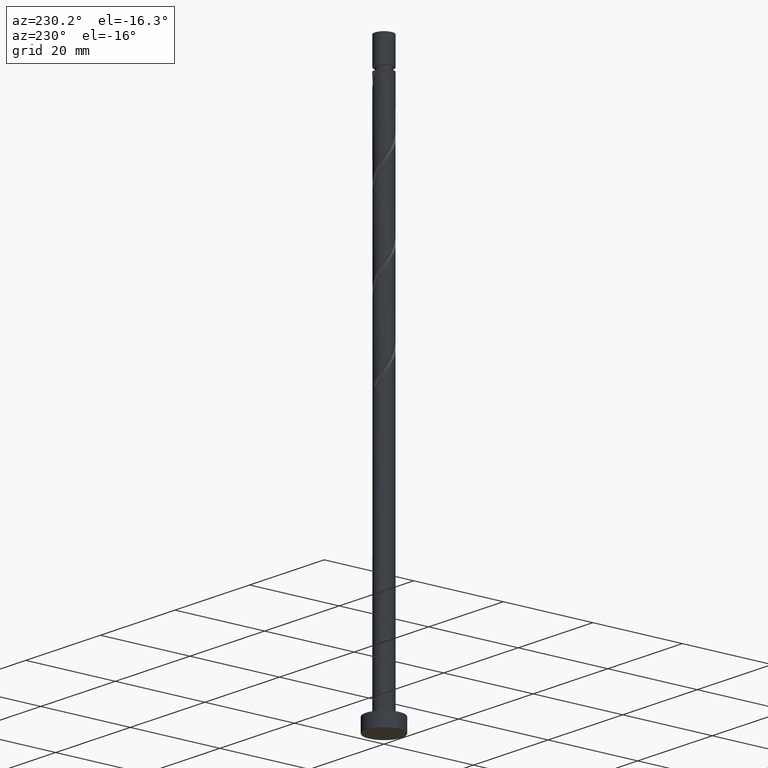
[diagram: clean part render]
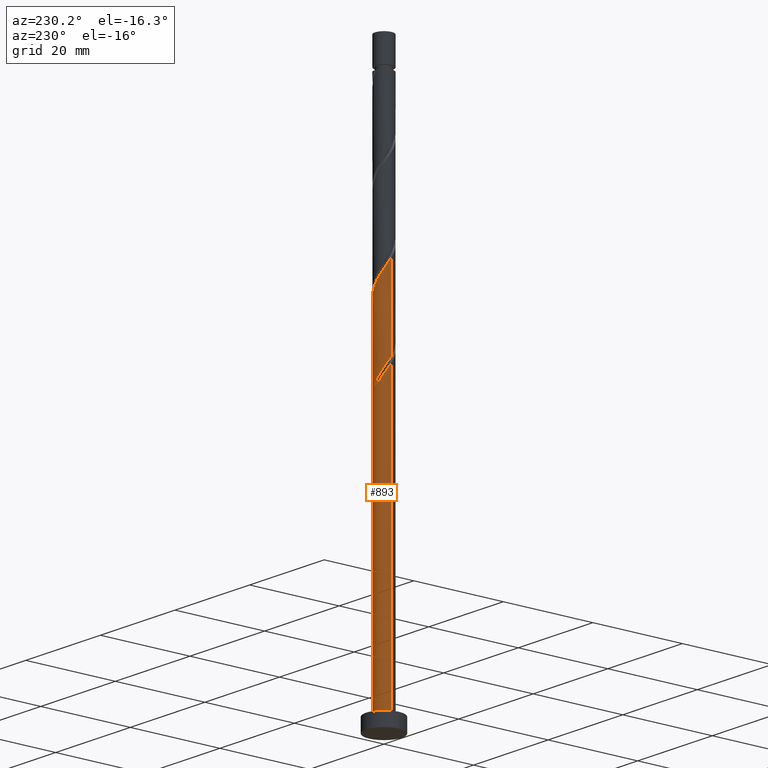
[diagram: same view with one face highlighted and labeled with its STEP entity id]
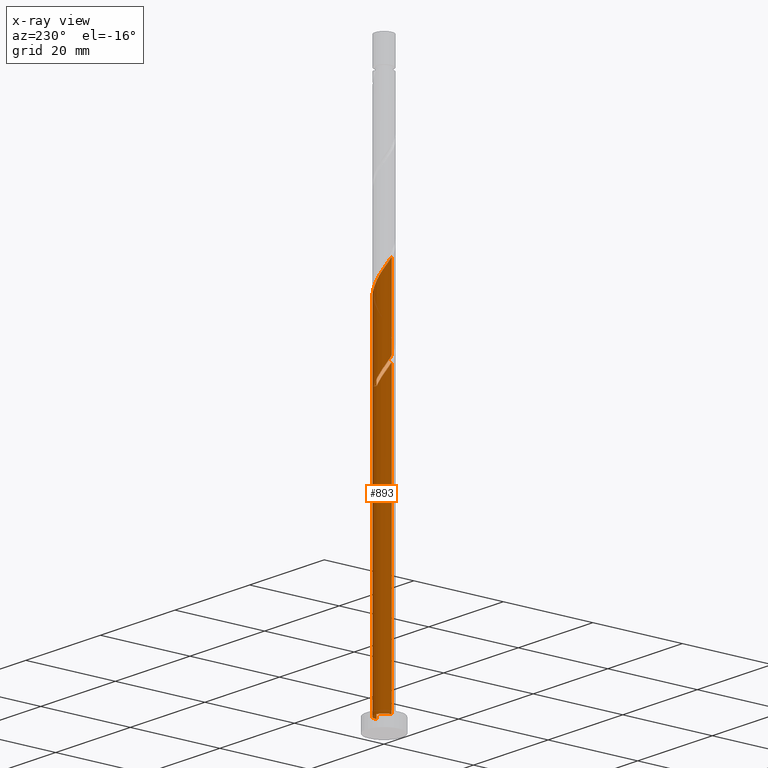
[diagram: x-ray of the same camera — body ghosted, the highlighted face saturated]
A machine part, auxiliary view. The second image highlights one B-rep face of the part: STEP entity #893.
The next image is the same camera in x-ray: the body ghosted, the highlighted face saturated — about 0% of this face is hidden behind the body in this view.
In plain terms, the highlighted cylindrical surface (edge-blend (fillet) strip) has radius 2 mm, axis along (-0, -0, -1).
Its self-contained STEP definition (entity closure, byte-faithful):
#7 = CARTESIAN_POINT ( 'NONE',  ( 1.960000000000002629, 0.3979949748426488410, 75.90742317712046372 ) ) ;
#16 = EDGE_CURVE ( 'NONE', #519, #1110, #1156, .T. ) ;
#95 = CARTESIAN_POINT ( 'NONE',  ( 2.000000000000002220, 2.518841267578560185E-15, 75.30644177003132711 ) ) ;
#116 = CARTESIAN_POINT ( 'NONE',  ( -1.259949568624708638, 1.585203333415018845, 63.19492317712048646 ) ) ;
#119 = CARTESIAN_POINT ( 'NONE',  ( -1.819608885673922094, 0.8300743961697160112, 83.44075651045378095 ) ) ;
#125 = CARTESIAN_POINT ( 'NONE',  ( 2.000000000000000000, 2.449293598294705921E-16, 3.000000000000000000 ) ) ;
#133 = EDGE_CURVE ( 'NONE', #1304, #1297, #585, .T. ) ;
#140 = ORIENTED_EDGE ( 'NONE', *, *, #1084, .T. ) ;
#154 = CARTESIAN_POINT ( 'NONE',  ( -2.000000000000002665, 2.773724014893056989E-15, 65.88977510336466992 ) ) ;
#164 = ORIENTED_EDGE ( 'NONE', *, *, #230, .T. ) ;
#168 =( BOUNDED_CURVE ( )  B_SPLINE_CURVE ( 2, ( #95, #1334, #7, #360, #480, #239, #462, #1559, #719, #1306, #221, #1097, #1440, #472, #710, #1211, #611, #1103, #119, #604, #982, #352, #495 ),
 .UNSPECIFIED., .F., .T. ) 
 B_SPLINE_CURVE_WITH_KNOTS ( ( 3, 2, 2, 2, 2, 2, 2, 2, 2, 2, 2, 3 ),
 ( 0.1795322023138553325, 0.1875000000000000000, 0.1999999999999999556, 0.2125000000000000222, 0.2249999999999999778, 0.2375000000000000444, 0.2500000000000000000, 0.2624999999999999556, 0.2750000000000000222, 0.2874999999999999778, 0.3000000000000000444, 0.3045322023138552492 ),
 .UNSPECIFIED. ) 
 CURVE ( )  GEOMETRIC_REPRESENTATION_ITEM ( )  RATIONAL_B_SPLINE_CURVE ( ( 0.9039174447099402876, 0.9019565955404696966, 0.9090909090909180534, 0.8978984914501340064, 0.9090909090909180534, 0.8978984914501340064, 0.9090909090909180534, 0.8978984914501340064, 0.9090909090909180534, 0.8978984914501340064, 0.9090909090909180534, 0.8978984914501340064, 0.9090909090909180534, 0.8978984914501340064, 0.9090909090909180534, 0.8978984914501340064, 0.9090909090909180534, 0.8978984914501340064, 0.9090909090909180534, 0.8978984914501340064, 0.9090909090909180534, 0.9050328050005823632, 0.9039174447099402876 ) ) 
 REPRESENTATION_ITEM ( '' )  );
#207 = CARTESIAN_POINT ( 'NONE',  ( 0.000000000000000000, 0.000000000000000000, 61.78242317712047083 ) ) ;
#209 =( BOUNDED_CURVE ( )  B_SPLINE_CURVE ( 2, ( #973, #1203, #252, #116, #602, #367, #850, #1330, #277, #1502, #154 ),
 .UNSPECIFIED., .F., .T. ) 
 B_SPLINE_CURVE_WITH_KNOTS ( ( 3, 2, 2, 2, 2, 3 ),
 ( 0.000000000000000000, 0.01249999999999995559, 0.02500000000000002220, 0.03749999999999997780, 0.05000000000000004441, 0.05453220231385516592 ),
 .UNSPECIFIED. ) 
 CURVE ( )  GEOMETRIC_REPRESENTATION_ITEM ( )  RATIONAL_B_SPLINE_CURVE ( ( 0.9090909090909180534, 0.8978984914501340064, 0.9090909090909180534, 0.8978984914501340064, 0.9090909090909180534, 0.8978984914501340064, 0.9090909090909180534, 0.8978984914501340064, 0.9090909090909180534, 0.9050328050005824743, 0.9039174447099402876 ) ) 
 REPRESENTATION_ITEM ( '' )  );
#211 = CARTESIAN_POINT ( 'NONE',  ( -0.5418766612026972851, 1.951079754338987282, 63.19492317712048646 ) ) ;
#214 = CARTESIAN_POINT ( 'NONE',  ( -2.000000000000002665, 2.773724014893057384E-15, 65.88977510336466992 ) ) ;
#218 = CARTESIAN_POINT ( 'NONE',  ( -1.351737732275873904, 1.474043792816779774, 64.60742317712046656 ) ) ;
#221 = CARTESIAN_POINT ( 'NONE',  ( 0.2271575946980709526, 1.987057982840712000, 79.67408984378714365 ) ) ;
#230 = EDGE_CURVE ( 'NONE', #1446, #1297, #1514, .T. ) ;
#238 = VERTEX_POINT ( 'NONE', #356 ) ;
#239 = CARTESIAN_POINT ( 'NONE',  ( 1.585203333415019289, 1.259949568624708638, 77.31992317712047225 ) ) ;
#252 = CARTESIAN_POINT ( 'NONE',  ( -0.9841890232517248593, 1.741083561036295357, 62.72408984378713370 ) ) ;
#271 = EDGE_CURVE ( 'NONE', #238, #1446, #848, .T. ) ;
#277 = CARTESIAN_POINT ( 'NONE',  ( -1.987057982840712000, 0.2271575946980705363, 65.54908984378712944 ) ) ;
#333 = DIRECTION ( 'NONE',  ( -1.000000000000000000, 0.000000000000000000, 0.000000000000000000 ) ) ;
#338 = CARTESIAN_POINT ( 'NONE',  ( -1.118272131136731629, 1.688138017008852021, 64.13658984378713512 ) ) ;
#347 = CARTESIAN_POINT ( 'NONE',  ( -0.2271575946980697869, 1.987057982840708892, 62.72408984378714791 ) ) ;
#350 = ORIENTED_EDGE ( 'NONE', *, *, #1237, .F. ) ;
#352 = CARTESIAN_POINT ( 'NONE',  ( -2.000000000000003553, 0.1139474748928642200, 84.55179041205465751 ) ) ;
#356 = CARTESIAN_POINT ( 'NONE',  ( 2.000000000000002220, 2.518841267578560185E-15, 75.30644177003134132 ) ) ;
#360 = CARTESIAN_POINT ( 'NONE',  ( 1.896963788657571426, 0.7084284778787407477, 76.37825651045379516 ) ) ;
#367 = CARTESIAN_POINT ( 'NONE',  ( -1.688138017008854241, 1.118272131136732961, 64.13658984378713512 ) ) ;
#369 = LINE ( 'NONE', #1078, #623 ) ;
#373 = VECTOR ( 'NONE', #545, 1000.000000000000000 ) ;
#424 = ORIENTED_EDGE ( 'NONE', *, *, #1288, .F. ) ;
#430 = CARTESIAN_POINT ( 'NONE',  ( -2.000000000000002665, 2.773724014893057384E-15, 84.72310843669802694 ) ) ;
#435 = CARTESIAN_POINT ( 'NONE',  ( -1.999999999999999556, -2.278951623047284666E-15, 67.09173791754292893 ) ) ;
#462 = CARTESIAN_POINT ( 'NONE',  ( 1.351737732275876347, 1.474043792816781329, 77.79075651045384632 ) ) ;
#472 = CARTESIAN_POINT ( 'NONE',  ( -0.7084284778787407477, 1.896963788657571426, 81.08658984378712375 ) ) ;
#479 = ORIENTED_EDGE ( 'NONE', *, *, #16, .F. ) ;
#480 = CARTESIAN_POINT ( 'NONE',  ( 1.741083561036295801, 0.9841890232517246373, 76.84908984378714081 ) ) ;
#495 = CARTESIAN_POINT ( 'NONE',  ( -2.000000000000002665, 2.773724014893056989E-15, 84.72310843669802694 ) ) ;
#509 = DIRECTION ( 'NONE',  ( 1.000000000000000000, 0.000000000000000000, 0.000000000000000000 ) ) ;
#519 = VERTEX_POINT ( 'NONE', #435 ) ;
#526 = ORIENTED_EDGE ( 'NONE', *, *, #271, .T. ) ;
#528 = CARTESIAN_POINT ( 'NONE',  ( 0.000000000000000000, 0.000000000000000000, 125.0000000000000000 ) ) ;
#542 = VERTEX_POINT ( 'NONE', #430 ) ;
#545 = DIRECTION ( 'NONE',  ( -0.000000000000000000, -0.000000000000000000, -1.000000000000000000 ) ) ;
#562 = CARTESIAN_POINT ( 'NONE',  ( -0.8300743961697145679, 1.819608885673919207, 63.66575651045381079 ) ) ;
#577 = CARTESIAN_POINT ( 'NONE',  ( 0.3979949748426494516, 1.959999999999999520, 61.78242317712046372 ) ) ;
#585 = LINE ( 'NONE', #1295, #1333 ) ;
#596 = AXIS2_PLACEMENT_3D ( 'NONE', #528, #1235, #891 ) ;
#602 = CARTESIAN_POINT ( 'NONE',  ( -1.474043792816781773, 1.351737732275875903, 63.66575651045381079 ) ) ;
#604 = CARTESIAN_POINT ( 'NONE',  ( -1.951079754338989725, 0.5418766612026983953, 83.91158984378711239 ) ) ;
#611 = CARTESIAN_POINT ( 'NONE',  ( -1.474043792816781773, 1.351737732275875903, 82.49908984378711807 ) ) ;
#623 = VECTOR ( 'NONE', #975, 1000.000000000000000 ) ;
#678 = CARTESIAN_POINT ( 'NONE',  ( 0.3979949748426493961, 1.959999999999999520, 61.78242317712046372 ) ) ;
#710 = CARTESIAN_POINT ( 'NONE',  ( -0.9841890232517248593, 1.741083561036295357, 81.55742317712046940 ) ) ;
#719 = CARTESIAN_POINT ( 'NONE',  ( 0.8300743961697165663, 1.819608885673922094, 78.73242317712049498 ) ) ;
#742 = AXIS2_PLACEMENT_3D ( 'NONE', #207, #1284, #333 ) ;
#813 = CARTESIAN_POINT ( 'NONE',  ( -1.741083561036292249, 0.9841890232517239712, 65.54908984378712944 ) ) ;
#822 = ORIENTED_EDGE ( 'NONE', *, *, #133, .F. ) ;
#823 = AXIS2_PLACEMENT_3D ( 'NONE', #963, #1115, #509 ) ;
#848 = LINE ( 'NONE', #871, #373 ) ;
#850 = CARTESIAN_POINT ( 'NONE',  ( -1.819608885673922094, 0.8300743961697160112, 64.60742317712046656 ) ) ;
#860 = ORIENTED_EDGE ( 'NONE', *, *, #1489, .F. ) ;
#871 = CARTESIAN_POINT ( 'NONE',  ( 2.000000000000000000, 2.449293598294705921E-16, 125.0000000000000000 ) ) ;
#891 = DIRECTION ( 'NONE',  ( -1.000000000000000000, 0.000000000000000000, 0.000000000000000000 ) ) ;
#893 = ADVANCED_FACE ( 'NONE', ( #998 ), #1480, .T. ) ;
#936 = CARTESIAN_POINT ( 'NONE',  ( -1.585203333415016180, 1.259949568624707750, 65.07825651045381221 ) ) ;
#944 = CARTESIAN_POINT ( 'NONE',  ( -1.959999999999999520, 0.3979949748426490630, 66.49075651045382074 ) ) ;
#963 = CARTESIAN_POINT ( 'NONE',  ( 0.000000000000000000, 0.000000000000000000, 3.000000000000000000 ) ) ;
#973 = CARTESIAN_POINT ( 'NONE',  ( -0.3979949748426486744, 1.960000000000002185, 61.78242317712046372 ) ) ;
#975 = DIRECTION ( 'NONE',  ( -0.000000000000000000, -0.000000000000000000, -1.000000000000000000 ) ) ;
#982 = CARTESIAN_POINT ( 'NONE',  ( -1.987057982840712000, 0.2271575946980705363, 84.38242317712047225 ) ) ;
#998 = FACE_OUTER_BOUND ( 'NONE', #1260, .T. ) ;
#1013 = VERTEX_POINT ( 'NONE', #1415 ) ;
#1078 = CARTESIAN_POINT ( 'NONE',  ( -2.000000000000000000, 0.000000000000000000, 125.0000000000000000 ) ) ;
#1084 = EDGE_CURVE ( 'NONE', #1013, #1110, #1335, .T. ) ;
#1097 = CARTESIAN_POINT ( 'NONE',  ( -0.08756147180655718398, 2.023036211342432722, 80.14492317712047509 ) ) ;
#1103 = CARTESIAN_POINT ( 'NONE',  ( -1.688138017008854241, 1.118272131136732961, 82.96992317712046372 ) ) ;
#1110 = VERTEX_POINT ( 'NONE', #678 ) ;
#1115 = DIRECTION ( 'NONE',  ( 0.000000000000000000, 0.000000000000000000, 1.000000000000000000 ) ) ;
#1156 =( BOUNDED_CURVE ( )  B_SPLINE_CURVE ( 2, ( #1403, #1291, #944, #1282, #813, #936, #218, #338, #562, #211, #347, #1555, #577 ),
 .UNSPECIFIED., .F., .T. ) 
 B_SPLINE_CURVE_WITH_KNOTS ( ( 3, 2, 2, 2, 2, 2, 3 ),
 ( 0.9295322023138551382, 0.9375000000000000000, 0.9499999999999999556, 0.9625000000000000222, 0.9749999999999999778, 0.9875000000000000444, 1.000000000000000000 ),
 .UNSPECIFIED. ) 
 CURVE ( )  GEOMETRIC_REPRESENTATION_ITEM ( )  RATIONAL_B_SPLINE_CURVE ( ( 0.9039174447099340703, 0.9019565955404633684, 0.9090909090909118362, 0.8978984914501279002, 0.9090909090909118362, 0.8978984914501279002, 0.9090909090909118362, 0.8978984914501279002, 0.9090909090909118362, 0.8978984914501279002, 0.9090909090909118362, 0.8978984914501279002, 0.9090909090909118362 ) ) 
 REPRESENTATION_ITEM ( '' )  );
#1203 = CARTESIAN_POINT ( 'NONE',  ( -0.7084284778787407477, 1.896963788657571426, 62.25325651045379516 ) ) ;
#1211 = CARTESIAN_POINT ( 'NONE',  ( -1.259949568624708638, 1.585203333415018845, 82.02825651045381505 ) ) ;
#1235 = DIRECTION ( 'NONE',  ( -0.000000000000000000, -0.000000000000000000, -1.000000000000000000 ) ) ;
#1237 = EDGE_CURVE ( 'NONE', #542, #519, #369, .T. ) ;
#1260 = EDGE_LOOP ( 'NONE', ( #424, #526, #164, #822, #860, #140, #479, #350 ) ) ;
#1276 = DIRECTION ( 'NONE',  ( -0.000000000000000000, -0.000000000000000000, -1.000000000000000000 ) ) ;
#1282 = CARTESIAN_POINT ( 'NONE',  ( -1.896963788657569427, 0.7084284778787400816, 66.01992317712046088 ) ) ;
#1284 = DIRECTION ( 'NONE',  ( 0.000000000000000000, -0.000000000000000000, -1.000000000000000000 ) ) ;
#1288 = EDGE_CURVE ( 'NONE', #238, #542, #168, .T. ) ;
#1291 = CARTESIAN_POINT ( 'NONE',  ( -1.999999999999999556, 0.2010075630518418366, 66.78952658137423271 ) ) ;
#1295 = CARTESIAN_POINT ( 'NONE',  ( -2.000000000000000000, 0.000000000000000000, 125.0000000000000000 ) ) ;
#1297 = VERTEX_POINT ( 'NONE', #1464 ) ;
#1304 = VERTEX_POINT ( 'NONE', #214 ) ;
#1306 = CARTESIAN_POINT ( 'NONE',  ( 0.5418766612026988394, 1.951079754338989725, 79.20325651045376958 ) ) ;
#1330 = CARTESIAN_POINT ( 'NONE',  ( -1.951079754338989725, 0.5418766612026983953, 65.07825651045379800 ) ) ;
#1333 = VECTOR ( 'NONE', #1276, 1000.000000000000000 ) ;
#1334 = CARTESIAN_POINT ( 'NONE',  ( 2.000000000000001332, 0.2010075630518460832, 75.60865310620002333 ) ) ;
#1335 = CIRCLE ( 'NONE', #742, 2.000000000000000000 ) ;
#1403 = CARTESIAN_POINT ( 'NONE',  ( -1.999999999999999556, -2.278951623047284666E-15, 67.09173791754292893 ) ) ;
#1415 = CARTESIAN_POINT ( 'NONE',  ( -0.3979949748426486744, 1.960000000000002185, 61.78242317712046372 ) ) ;
#1440 = CARTESIAN_POINT ( 'NONE',  ( -0.3979949748426487299, 1.960000000000002629, 80.61575651045380653 ) ) ;
#1446 = VERTEX_POINT ( 'NONE', #125 ) ;
#1464 = CARTESIAN_POINT ( 'NONE',  ( -2.000000000000000000, 0.000000000000000000, 3.000000000000000000 ) ) ;
#1480 = CYLINDRICAL_SURFACE ( 'NONE', #596, 2.000000000000000000 ) ;
#1489 = EDGE_CURVE ( 'NONE', #1013, #1304, #209, .T. ) ;
#1502 = CARTESIAN_POINT ( 'NONE',  ( -2.000000000000003109, 0.1139474748928665099, 65.71845707872130049 ) ) ;
#1514 = CIRCLE ( 'NONE', #823, 2.000000000000000000 ) ;
#1555 = CARTESIAN_POINT ( 'NONE',  ( 0.08756147180655798890, 2.023036211342430502, 62.25325651045380937 ) ) ;
#1559 = CARTESIAN_POINT ( 'NONE',  ( 1.118272131136733405, 1.688138017008854019, 78.26158984378714933 ) ) ;